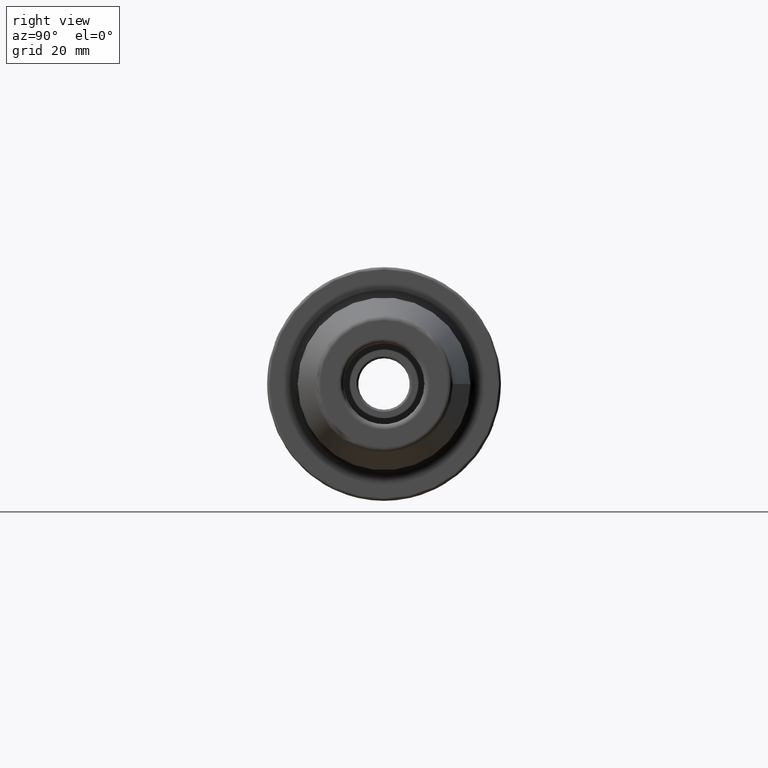
[diagram: clean part render]
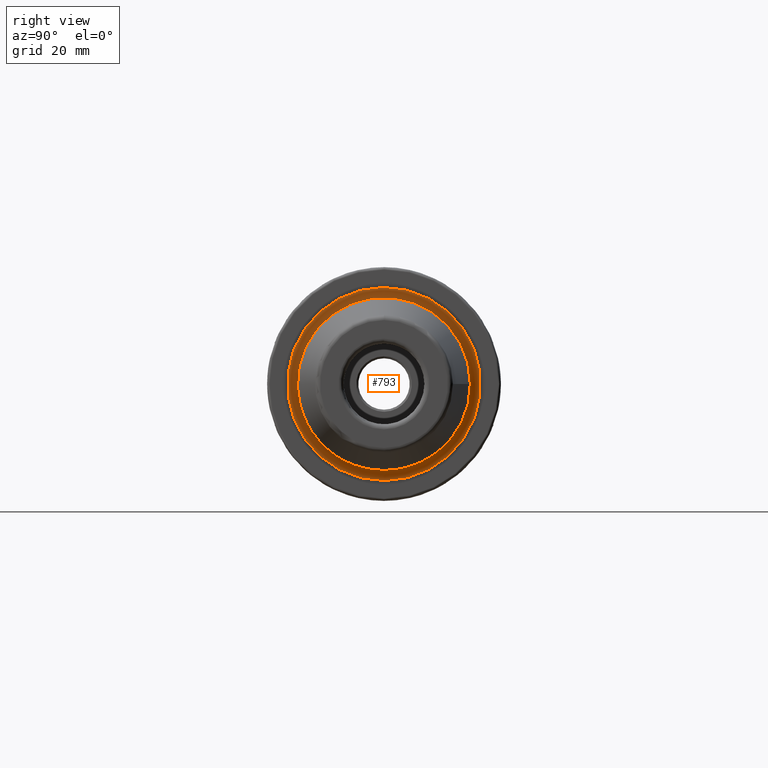
[diagram: same view with one face highlighted and labeled with its STEP entity id]
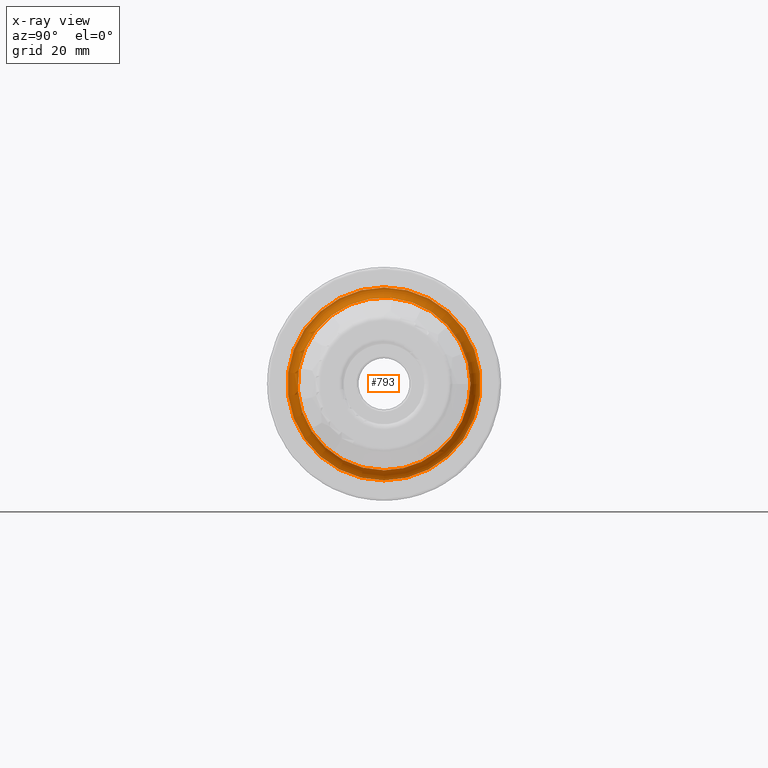
[diagram: x-ray of the same camera — body ghosted, the highlighted face saturated]
A machine part, right view. The second image highlights one B-rep face of the part: STEP entity #793.
The next image is the same camera in x-ray: the body ghosted, the highlighted face saturated — about 0% of this face is hidden behind the body in this view.
In plain terms, the highlighted toroidal blend (fillet) surface has major radius 19 mm and minor (blend) radius 2 mm.
Its self-contained STEP definition (entity closure, byte-faithful):
#62=TOROIDAL_SURFACE('',#870,19.,2.);
#88=FACE_OUTER_BOUND('',#138,.T.);
#138=EDGE_LOOP('',(#545,#546,#547,#548,#549));
#277=CIRCLE('',#871,17.);
#278=CIRCLE('',#872,17.);
#279=CIRCLE('',#873,2.);
#280=CIRCLE('',#874,19.);
#337=VERTEX_POINT('',#1250);
#338=VERTEX_POINT('',#1251);
#339=VERTEX_POINT('',#1254);
#419=EDGE_CURVE('',#337,#338,#277,.T.);
#420=EDGE_CURVE('',#338,#337,#278,.T.);
#421=EDGE_CURVE('',#337,#339,#279,.T.);
#422=EDGE_CURVE('',#339,#339,#280,.T.);
#545=ORIENTED_EDGE('',*,*,#419,.T.);
#546=ORIENTED_EDGE('',*,*,#420,.T.);
#547=ORIENTED_EDGE('',*,*,#421,.T.);
#548=ORIENTED_EDGE('',*,*,#422,.T.);
#549=ORIENTED_EDGE('',*,*,#421,.F.);
#793=ADVANCED_FACE('',(#88),#62,.F.);
#870=AXIS2_PLACEMENT_3D('',#1249,#990,#991);
#871=AXIS2_PLACEMENT_3D('',#1252,#992,#993);
#872=AXIS2_PLACEMENT_3D('',#1253,#994,#995);
#873=AXIS2_PLACEMENT_3D('',#1255,#996,#997);
#874=AXIS2_PLACEMENT_3D('',#1256,#998,#999);
#990=DIRECTION('center_axis',(-1.,-1.62798202122572E-21,0.));
#991=DIRECTION('ref_axis',(0.,0.,1.));
#992=DIRECTION('center_axis',(-1.,-1.62798202122572E-21,0.));
#993=DIRECTION('ref_axis',(0.,1.,1.22464679914735E-16));
#994=DIRECTION('center_axis',(-1.,-1.62798202122572E-21,0.));
#995=DIRECTION('ref_axis',(0.,1.,1.22464679914735E-16));
#996=DIRECTION('center_axis',(1.62798202122572E-21,-1.,1.22464679914735E-16));
#997=DIRECTION('ref_axis',(0.,-1.22464679914735E-16,-1.));
#998=DIRECTION('center_axis',(1.,1.62798202122572E-21,0.));
#999=DIRECTION('ref_axis',(-1.62798202122572E-21,1.,1.22464679914735E-16));
#1249=CARTESIAN_POINT('Origin',(24.,0.,0.));
#1250=CARTESIAN_POINT('',(24.,-2.0818995585505E-15,-17.));
#1251=CARTESIAN_POINT('',(24.,17.,2.0818995585505E-15));
#1252=CARTESIAN_POINT('Origin',(24.,0.,0.));
#1253=CARTESIAN_POINT('Origin',(24.,0.,0.));
#1254=CARTESIAN_POINT('',(22.,-2.32683217434401E-15,-19.));
#1255=CARTESIAN_POINT('Origin',(24.,-2.32682891837997E-15,-19.));
#1256=CARTESIAN_POINT('Origin',(22.,-3.25596404245145E-21,0.));